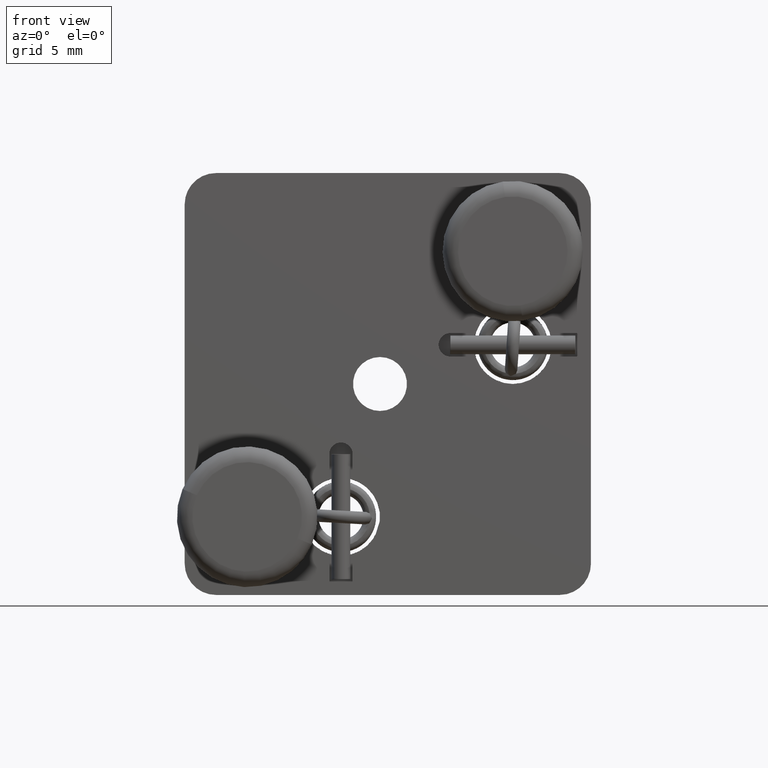
[diagram: clean part render]
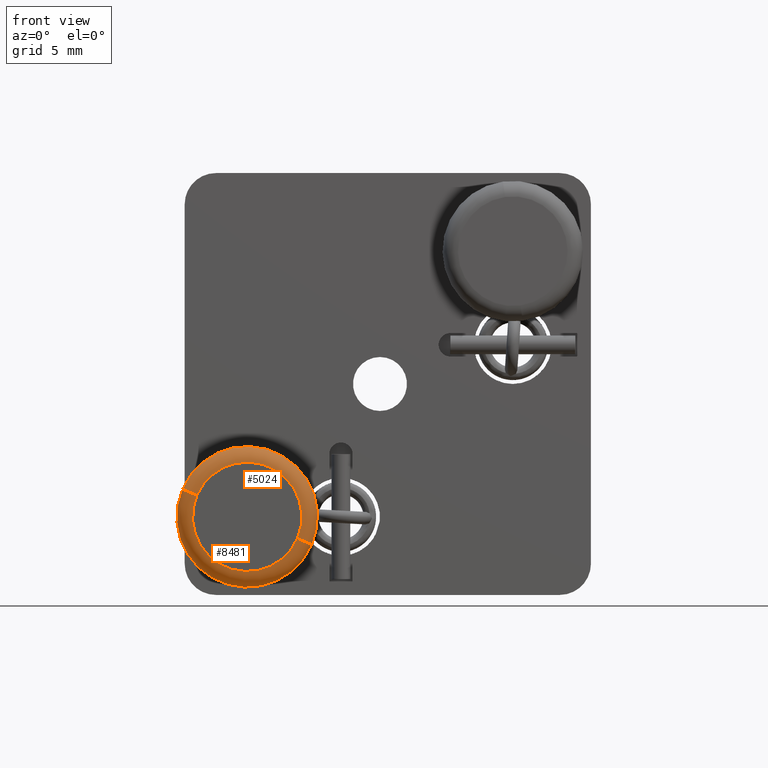
[diagram: same view with one multi-face feature highlighted, each face labeled with its STEP entity id]
A machine part, front view. The highlighted faces form ONE feature: a constant-radius fillet chain: 2 tangent blend faces with common blend radius 1 mm. The faces share edges in the B-rep.
Their STEP definitions:
[1] entity #5024 (Torus):
#375 = DIRECTION ( 'NONE',  ( 0.3936922426284136800, 3.716047909488018500E-017, 0.9192423065189125900 ) ) ;
#440 = DIRECTION ( 'NONE',  ( 0.9192423065189125900, -1.291683667839136700E-016, -0.3936922426284135100 ) ) ;
#800 = AXIS2_PLACEMENT_3D ( 'NONE', #5449, #375, #6347 ) ;
#999 = CARTESIAN_POINT ( 'NONE',  ( -13.36243490077009000, -22.49123321784738000, 18.27161509182787200 ) ) ;
#1001 = CIRCLE ( 'NONE', #8993, 4.500000000000007100 ) ;
#1833 = DIRECTION ( 'NONE',  ( -1.041072350597160300E-016, -1.000000000000000000, 8.501206851033395900E-017 ) ) ;
#1953 = CIRCLE ( 'NONE', #3308, 3.500000000000006200 ) ;
#2182 = AXIS2_PLACEMENT_3D ( 'NONE', #7210, #5522, #440 ) ;
#2441 = CARTESIAN_POINT ( 'NONE',  ( -5.089254142099870900, -22.49123321784738000, 14.72838490817214000 ) ) ;
#2831 = CARTESIAN_POINT ( 'NONE',  ( -12.44319259425118100, -23.49123321784738400, 17.87792284919945700 ) ) ;
#3096 = AXIS2_PLACEMENT_3D ( 'NONE', #4684, #10614, #5530 ) ;
#3130 = CARTESIAN_POINT ( 'NONE',  ( -9.225844521434984500, -22.49123321784738000, 16.50000000000000400 ) ) ;
#3293 = CARTESIAN_POINT ( 'NONE',  ( -6.008496448618784800, -23.49123321784738400, 15.12207715080055300 ) ) ;
#3308 = AXIS2_PLACEMENT_3D ( 'NONE', #6919, #1833, #7764 ) ;
#3718 = EDGE_CURVE ( 'NONE', #4320, #8798, #8779, .T. ) ;
#3797 = CIRCLE ( 'NONE', #3096, 0.9999999999999997800 ) ;
#3998 = DIRECTION ( 'NONE',  ( 0.9192423065189127000, 0.0000000000000000000, -0.3936922426284135100 ) ) ;
#4206 = ORIENTED_EDGE ( 'NONE', *, *, #7090, .F. ) ;
#4320 = VERTEX_POINT ( 'NONE', #999 ) ;
#4684 = CARTESIAN_POINT ( 'NONE',  ( -6.008496448618784800, -22.49123321784738000, 15.12207715080055300 ) ) ;
#5024 = ADVANCED_FACE ( 'NONE', ( #9049 ), #8265, .T. ) ;
#5088 = ORIENTED_EDGE ( 'NONE', *, *, #5213, .F. ) ;
#5213 = EDGE_CURVE ( 'NONE', #4320, #6639, #1001, .T. ) ;
#5449 = CARTESIAN_POINT ( 'NONE',  ( -12.44319259425118300, -22.49123321784738000, 17.87792284919945400 ) ) ;
#5522 = DIRECTION ( 'NONE',  ( -1.041072350597160300E-016, -1.000000000000000000, 8.501206851033395900E-017 ) ) ;
#5530 = DIRECTION ( 'NONE',  ( -0.9192423065189127000, 0.0000000000000000000, 0.3936922426284132900 ) ) ;
#5866 = EDGE_LOOP ( 'NONE', ( #5088, #10550, #7645, #4206 ) ) ;
#6347 = DIRECTION ( 'NONE',  ( 0.9192423065189121400, 0.0000000000000000000, -0.3936922426284144600 ) ) ;
#6639 = VERTEX_POINT ( 'NONE', #2441 ) ;
#6748 = EDGE_CURVE ( 'NONE', #9446, #8798, #1953, .T. ) ;
#6919 = CARTESIAN_POINT ( 'NONE',  ( -9.225844521434984500, -23.49123321784738400, 16.50000000000000400 ) ) ;
#7090 = EDGE_CURVE ( 'NONE', #6639, #9446, #3797, .T. ) ;
#7210 = CARTESIAN_POINT ( 'NONE',  ( -9.225844521434984500, -22.49123321784738000, 16.50000000000000400 ) ) ;
#7645 = ORIENTED_EDGE ( 'NONE', *, *, #6748, .F. ) ;
#7764 = DIRECTION ( 'NONE',  ( 0.9192423065189123700, 0.0000000000000000000, -0.3936922426284137900 ) ) ;
#8265 = TOROIDAL_SURFACE ( 'NONE', #2182, 3.500000000000002200, 1.000000000000000000 ) ;
#8779 = CIRCLE ( 'NONE', #800, 1.000000000000001300 ) ;
#8798 = VERTEX_POINT ( 'NONE', #2831 ) ;
#8993 = AXIS2_PLACEMENT_3D ( 'NONE', #3130, #9082, #3998 ) ;
#9049 = FACE_OUTER_BOUND ( 'NONE', #5866, .T. ) ;
#9082 = DIRECTION ( 'NONE',  ( 1.041072350597160300E-016, 1.000000000000000000, -8.501206851033395900E-017 ) ) ;
#9446 = VERTEX_POINT ( 'NONE', #3293 ) ;
#10550 = ORIENTED_EDGE ( 'NONE', *, *, #3718, .T. ) ;
#10614 = DIRECTION ( 'NONE',  ( -0.3936922426284135700, -3.716047909488019100E-017, -0.9192423065189125900 ) ) ;
[2] entity #8481 (Torus):
#184 = DIRECTION ( 'NONE',  ( 0.9192423065189127000, 0.0000000000000000000, -0.3936922426284135100 ) ) ;
#251 = DIRECTION ( 'NONE',  ( -1.041072350597160300E-016, -1.000000000000000000, 8.501206851033395900E-017 ) ) ;
#375 = DIRECTION ( 'NONE',  ( 0.3936922426284136800, 3.716047909488018500E-017, 0.9192423065189125900 ) ) ;
#800 = AXIS2_PLACEMENT_3D ( 'NONE', #5449, #375, #6347 ) ;
#907 = CARTESIAN_POINT ( 'NONE',  ( -9.225844521434984500, -22.49123321784738000, 16.50000000000000400 ) ) ;
#999 = CARTESIAN_POINT ( 'NONE',  ( -13.36243490077009000, -22.49123321784738000, 18.27161509182787200 ) ) ;
#1799 = ORIENTED_EDGE ( 'NONE', *, *, #7503, .F. ) ;
#2441 = CARTESIAN_POINT ( 'NONE',  ( -5.089254142099870900, -22.49123321784738000, 14.72838490817214000 ) ) ;
#2831 = CARTESIAN_POINT ( 'NONE',  ( -12.44319259425118100, -23.49123321784738400, 17.87792284919945700 ) ) ;
#3096 = AXIS2_PLACEMENT_3D ( 'NONE', #4684, #10614, #5530 ) ;
#3293 = CARTESIAN_POINT ( 'NONE',  ( -6.008496448618784800, -23.49123321784738400, 15.12207715080055300 ) ) ;
#3433 = EDGE_CURVE ( 'NONE', #6639, #4320, #7588, .T. ) ;
#3718 = EDGE_CURVE ( 'NONE', #4320, #8798, #8779, .T. ) ;
#3797 = CIRCLE ( 'NONE', #3096, 0.9999999999999997800 ) ;
#4320 = VERTEX_POINT ( 'NONE', #999 ) ;
#4326 = DIRECTION ( 'NONE',  ( -1.041072350597160300E-016, -1.000000000000000000, 8.501206851033395900E-017 ) ) ;
#4390 = AXIS2_PLACEMENT_3D ( 'NONE', #5326, #251, #6212 ) ;
#4684 = CARTESIAN_POINT ( 'NONE',  ( -6.008496448618784800, -22.49123321784738000, 15.12207715080055300 ) ) ;
#5262 = DIRECTION ( 'NONE',  ( 1.041072350597160300E-016, 1.000000000000000000, -8.501206851033395900E-017 ) ) ;
#5326 = CARTESIAN_POINT ( 'NONE',  ( -9.225844521434984500, -23.49123321784738400, 16.50000000000000400 ) ) ;
#5449 = CARTESIAN_POINT ( 'NONE',  ( -12.44319259425118300, -22.49123321784738000, 17.87792284919945400 ) ) ;
#5530 = DIRECTION ( 'NONE',  ( -0.9192423065189127000, 0.0000000000000000000, 0.3936922426284132900 ) ) ;
#5778 = ORIENTED_EDGE ( 'NONE', *, *, #3433, .F. ) ;
#6190 = CIRCLE ( 'NONE', #4390, 3.500000000000006200 ) ;
#6212 = DIRECTION ( 'NONE',  ( 0.9192423065189123700, 0.0000000000000000000, -0.3936922426284137900 ) ) ;
#6347 = DIRECTION ( 'NONE',  ( 0.9192423065189121400, 0.0000000000000000000, -0.3936922426284144600 ) ) ;
#6639 = VERTEX_POINT ( 'NONE', #2441 ) ;
#6927 = EDGE_LOOP ( 'NONE', ( #10925, #5778, #7362, #1799 ) ) ;
#7090 = EDGE_CURVE ( 'NONE', #6639, #9446, #3797, .T. ) ;
#7183 = TOROIDAL_SURFACE ( 'NONE', #7891, 3.500000000000002200, 1.000000000000000000 ) ;
#7362 = ORIENTED_EDGE ( 'NONE', *, *, #7090, .T. ) ;
#7503 = EDGE_CURVE ( 'NONE', #8798, #9446, #6190, .T. ) ;
#7588 = CIRCLE ( 'NONE', #7842, 4.500000000000007100 ) ;
#7842 = AXIS2_PLACEMENT_3D ( 'NONE', #10352, #5262, #184 ) ;
#7891 = AXIS2_PLACEMENT_3D ( 'NONE', #907, #4326, #10250 ) ;
#8481 = ADVANCED_FACE ( 'NONE', ( #11023 ), #7183, .T. ) ;
#8779 = CIRCLE ( 'NONE', #800, 1.000000000000001300 ) ;
#8798 = VERTEX_POINT ( 'NONE', #2831 ) ;
#9446 = VERTEX_POINT ( 'NONE', #3293 ) ;
#10250 = DIRECTION ( 'NONE',  ( 0.9192423065189125900, -1.291683667839136700E-016, -0.3936922426284135100 ) ) ;
#10352 = CARTESIAN_POINT ( 'NONE',  ( -9.225844521434984500, -22.49123321784738000, 16.50000000000000400 ) ) ;
#10614 = DIRECTION ( 'NONE',  ( -0.3936922426284135700, -3.716047909488019100E-017, -0.9192423065189125900 ) ) ;
#10925 = ORIENTED_EDGE ( 'NONE', *, *, #3718, .F. ) ;
#11023 = FACE_OUTER_BOUND ( 'NONE', #6927, .T. ) ;